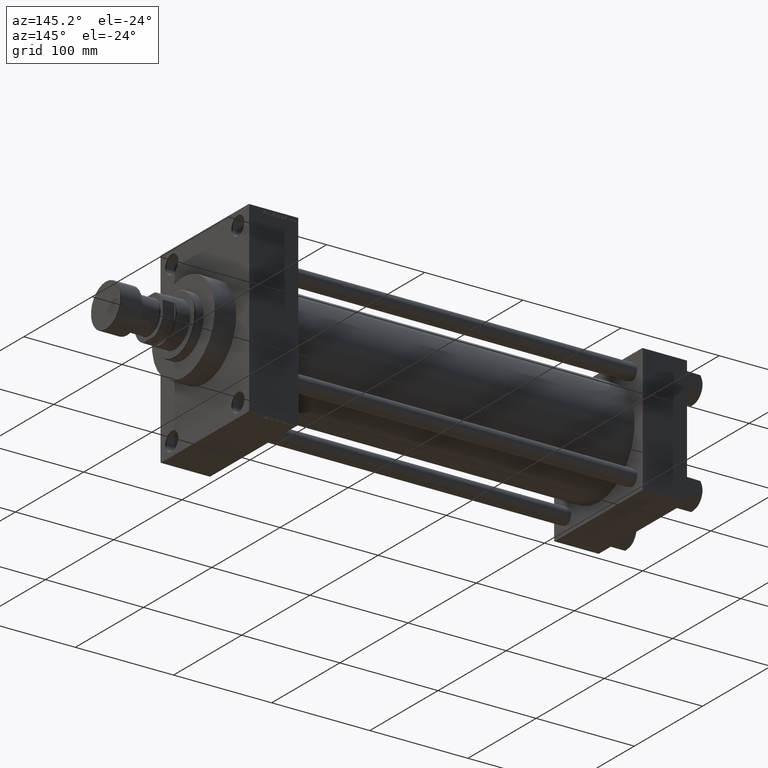
[diagram: clean part render]
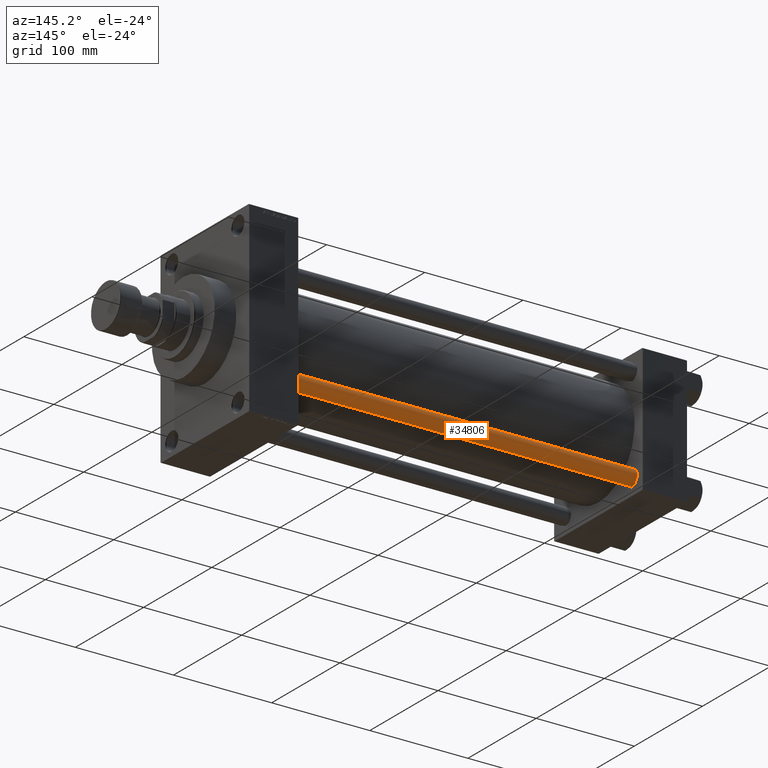
[diagram: same view with one face highlighted and labeled with its STEP entity id]
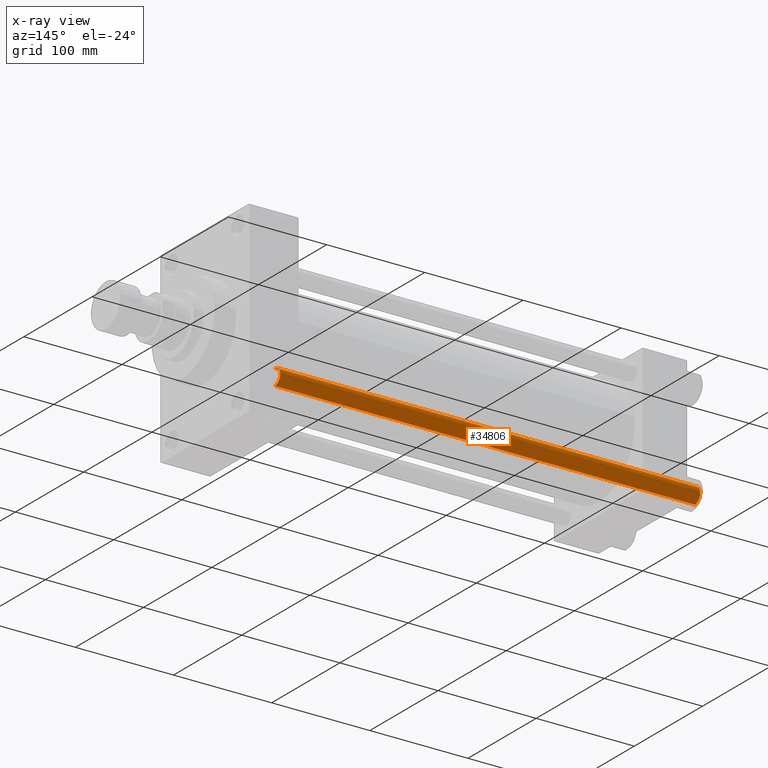
[diagram: x-ray of the same camera — body ghosted, the highlighted face saturated]
A machine part, auxiliary view. The second image highlights one B-rep face of the part: STEP entity #34806.
The next image is the same camera in x-ray: the body ghosted, the highlighted face saturated — about 0% of this face is hidden behind the body in this view.
In plain terms, the highlighted cylindrical surface (edge-blend (fillet) strip) has radius 8 mm, axis along (-1, -0, 0).
Its self-contained STEP definition (entity closure, byte-faithful):
#3247 = DIRECTION ( 'NONE',  ( -0.000000000000000000, -0.000000000000000000, 1.000000000000000000 ) ) ;
#3312 = DIRECTION ( 'NONE',  ( -0.000000000000000000, -0.000000000000000000, -1.000000000000000000 ) ) ;
#4785 = DIRECTION ( 'NONE',  ( 0.000000000000000000, 0.000000000000000000, -1.000000000000000000 ) ) ;
#4893 = AXIS2_PLACEMENT_3D ( 'NONE', #44131, #3247, #14194 ) ;
#4969 = DIRECTION ( 'NONE',  ( -0.000000000000000000, -0.000000000000000000, -1.000000000000000000 ) ) ;
#5897 = VERTEX_POINT ( 'NONE', #36133 ) ;
#6994 = VECTOR ( 'NONE', #4969, 1000.000000000000000 ) ;
#7693 = CYLINDRICAL_SURFACE ( 'NONE', #31319, 8.000000000000000000 ) ;
#8849 = LINE ( 'NONE', #27834, #6994 ) ;
#9661 = CARTESIAN_POINT ( 'NONE',  ( -8.000000000000000000, 0.000000000000000000, 0.4999999999998894218 ) ) ;
#9835 = ORIENTED_EDGE ( 'NONE', *, *, #23242, .T. ) ;
#10509 = CARTESIAN_POINT ( 'NONE',  ( -8.000000000000000000, 0.000000000000000000, 428.5000000000000000 ) ) ;
#10682 = ORIENTED_EDGE ( 'NONE', *, *, #34102, .T. ) ;
#14194 = DIRECTION ( 'NONE',  ( 1.000000000000000000, 0.000000000000000000, 0.000000000000000000 ) ) ;
#14993 = CARTESIAN_POINT ( 'NONE',  ( 0.000000000000000000, 0.000000000000000000, 429.0000000000000000 ) ) ;
#18411 = DIRECTION ( 'NONE',  ( -1.000000000000000000, 0.000000000000000000, 0.000000000000000000 ) ) ;
#18969 = VECTOR ( 'NONE', #36009, 1000.000000000000000 ) ;
#19973 = CIRCLE ( 'NONE', #35492, 8.000000000000000000 ) ;
#20595 = ORIENTED_EDGE ( 'NONE', *, *, #29489, .F. ) ;
#22777 = CIRCLE ( 'NONE', #4893, 8.000000000000000000 ) ;
#23242 = EDGE_CURVE ( 'NONE', #43996, #41339, #19973, .T. ) ;
#27834 = CARTESIAN_POINT ( 'NONE',  ( -8.000000000000000000, 0.000000000000000000, 429.0000000000000000 ) ) ;
#28481 = LINE ( 'NONE', #31887, #18969 ) ;
#29489 = EDGE_CURVE ( 'NONE', #43996, #39873, #8849, .T. ) ;
#30349 = EDGE_LOOP ( 'NONE', ( #9835, #36278, #10682, #20595 ) ) ;
#31319 = AXIS2_PLACEMENT_3D ( 'NONE', #14993, #3312, #18411 ) ;
#31887 = CARTESIAN_POINT ( 'NONE',  ( 8.000000000000000000, 9.797174393178825657E-16, 429.0000000000000000 ) ) ;
#32021 = CARTESIAN_POINT ( 'NONE',  ( 8.000000000000000000, 9.797174393178825657E-16, 428.5000000000000000 ) ) ;
#34102 = EDGE_CURVE ( 'NONE', #5897, #39873, #22777, .T. ) ;
#34806 = ADVANCED_FACE ( 'NONE', ( #44669 ), #7693, .T. ) ;
#35492 = AXIS2_PLACEMENT_3D ( 'NONE', #44040, #4785, #45660 ) ;
#36009 = DIRECTION ( 'NONE',  ( -0.000000000000000000, -0.000000000000000000, -1.000000000000000000 ) ) ;
#36133 = CARTESIAN_POINT ( 'NONE',  ( 8.000000000000000000, 9.797174393178825657E-16, 0.4999999999998894218 ) ) ;
#36278 = ORIENTED_EDGE ( 'NONE', *, *, #37541, .T. ) ;
#37541 = EDGE_CURVE ( 'NONE', #41339, #5897, #28481, .T. ) ;
#39873 = VERTEX_POINT ( 'NONE', #9661 ) ;
#41339 = VERTEX_POINT ( 'NONE', #32021 ) ;
#43996 = VERTEX_POINT ( 'NONE', #10509 ) ;
#44040 = CARTESIAN_POINT ( 'NONE',  ( 0.000000000000000000, 0.000000000000000000, 428.5000000000000000 ) ) ;
#44131 = CARTESIAN_POINT ( 'NONE',  ( 0.000000000000000000, 0.000000000000000000, 0.4999999999998894218 ) ) ;
#44669 = FACE_OUTER_BOUND ( 'NONE', #30349, .T. ) ;
#45660 = DIRECTION ( 'NONE',  ( 1.000000000000000000, 0.000000000000000000, 0.000000000000000000 ) ) ;